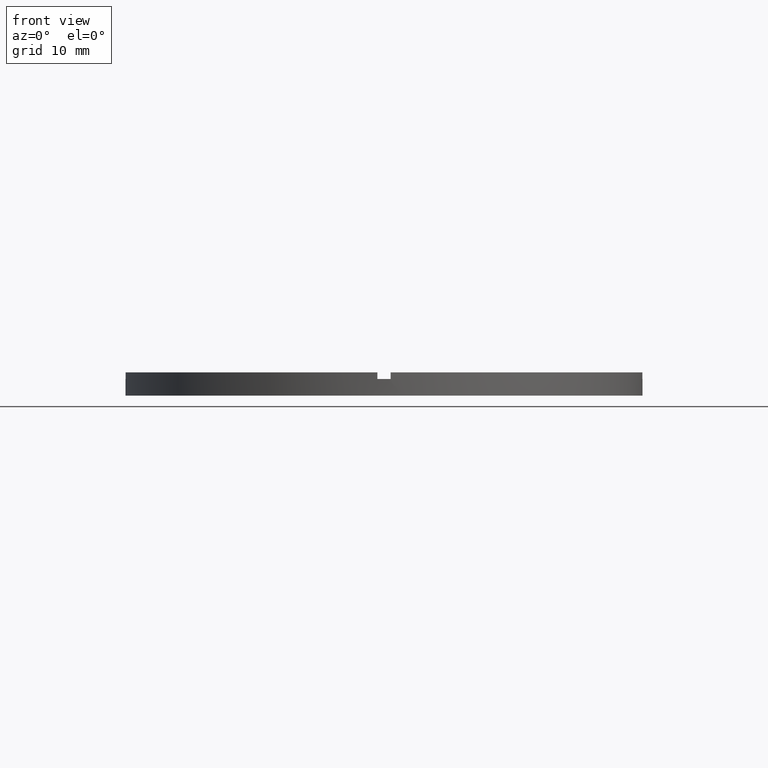
[diagram: clean part render]
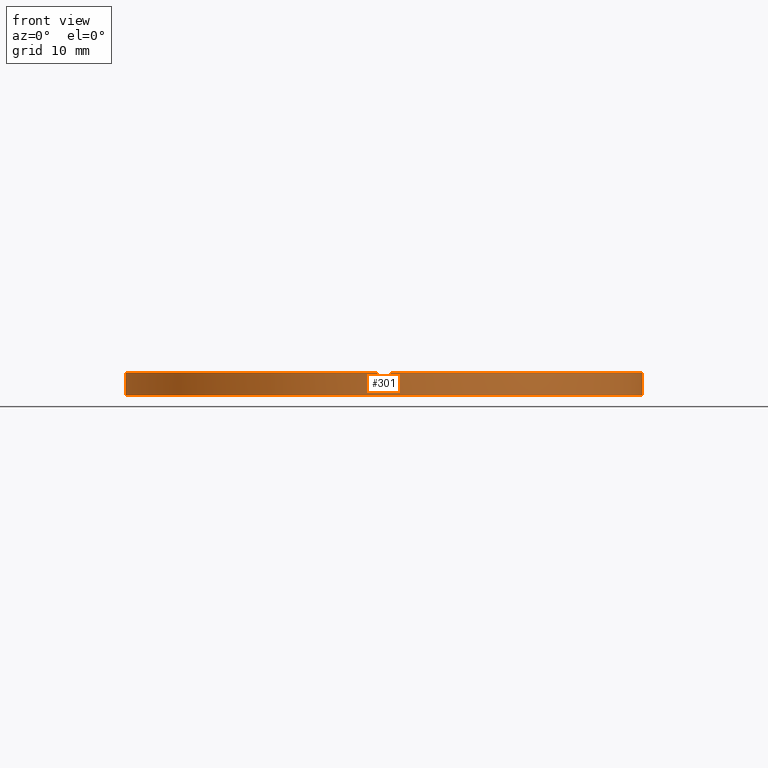
[diagram: same view with one face highlighted and labeled with its STEP entity id]
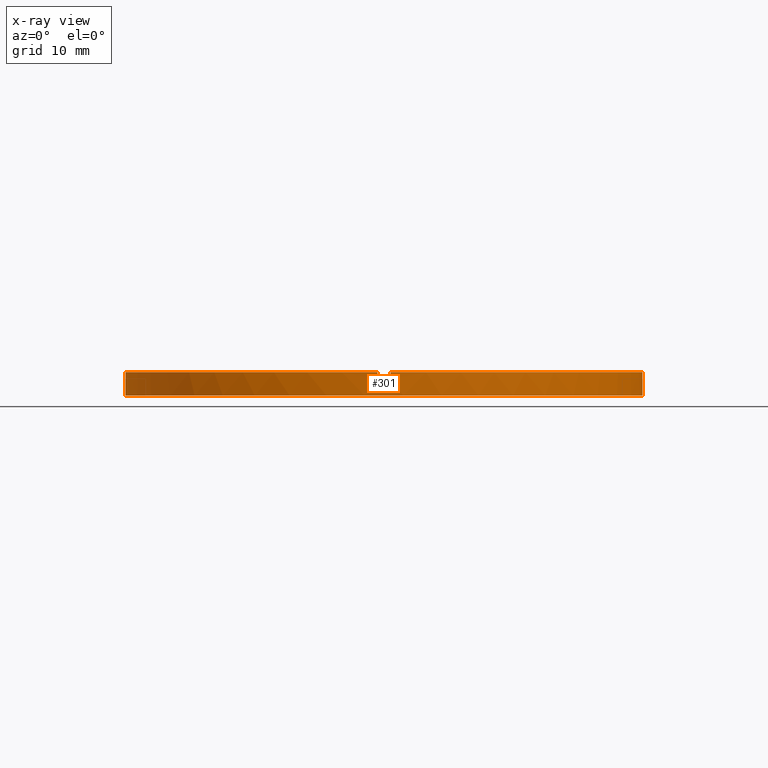
[diagram: x-ray of the same camera — body ghosted, the highlighted face saturated]
A machine part, front view. The second image highlights one B-rep face of the part: STEP entity #301.
The next image is the same camera in x-ray: the body ghosted, the highlighted face saturated — about 0% of this face is hidden behind the body in this view.
In plain terms, the highlighted cylindrical surface (partial cylindrical patch) has radius 39 mm, axis along (-0, -0, -1).
Its self-contained STEP definition (entity closure, byte-faithful):
#8 = CARTESIAN_POINT ( 'NONE',  ( 0.000000000000000000, 0.000000000000000000, 3.500000000000000000 ) ) ;
#11 = EDGE_CURVE ( 'NONE', #224, #164, #133, .T. ) ;
#14 = CARTESIAN_POINT ( 'NONE',  ( 0.9999999999998406830, -38.98717737923585958, 2.500000000000000000 ) ) ;
#44 = AXIS2_PLACEMENT_3D ( 'NONE', #8, #274, #601 ) ;
#47 = CARTESIAN_POINT ( 'NONE',  ( 0.000000000000000000, 0.000000000000000000, 3.500000000000000000 ) ) ;
#54 = EDGE_CURVE ( 'NONE', #696, #496, #155, .T. ) ;
#58 = CARTESIAN_POINT ( 'NONE',  ( -39.00000000000000000, 0.000000000000000000, 3.500000000000000000 ) ) ;
#59 = CARTESIAN_POINT ( 'NONE',  ( 0.000000000000000000, 0.000000000000000000, 2.500000000000000000 ) ) ;
#69 = CARTESIAN_POINT ( 'NONE',  ( -38.98717737923585247, -1.000000000000027978, 2.500000000000000000 ) ) ;
#71 = VECTOR ( 'NONE', #178, 1000.000000000000000 ) ;
#82 = CIRCLE ( 'NONE', #277, 39.00000000000000000 ) ;
#92 = LINE ( 'NONE', #602, #365 ) ;
#105 = CIRCLE ( 'NONE', #641, 39.00000000000000000 ) ;
#133 = LINE ( 'NONE', #640, #157 ) ;
#134 = VECTOR ( 'NONE', #425, 1000.000000000000000 ) ;
#155 = LINE ( 'NONE', #58, #134 ) ;
#157 = VECTOR ( 'NONE', #305, 1000.000000000000000 ) ;
#164 = VERTEX_POINT ( 'NONE', #672 ) ;
#174 = EDGE_CURVE ( 'NONE', #224, #257, #535, .T. ) ;
#178 = DIRECTION ( 'NONE',  ( -0.000000000000000000, -0.000000000000000000, -1.000000000000000000 ) ) ;
#179 = CARTESIAN_POINT ( 'NONE',  ( 39.00000000000000000, 4.776122516674677878E-15, 0.000000000000000000 ) ) ;
#185 = ORIENTED_EDGE ( 'NONE', *, *, #11, .T. ) ;
#198 = ORIENTED_EDGE ( 'NONE', *, *, #427, .F. ) ;
#212 = ORIENTED_EDGE ( 'NONE', *, *, #508, .F. ) ;
#224 = VERTEX_POINT ( 'NONE', #542 ) ;
#226 = VERTEX_POINT ( 'NONE', #423 ) ;
#230 = ORIENTED_EDGE ( 'NONE', *, *, #54, .T. ) ;
#240 = AXIS2_PLACEMENT_3D ( 'NONE', #454, #649, #247 ) ;
#241 = ORIENTED_EDGE ( 'NONE', *, *, #766, .F. ) ;
#247 = DIRECTION ( 'NONE',  ( 1.000000000000000000, 0.000000000000000000, 0.000000000000000000 ) ) ;
#251 = VERTEX_POINT ( 'NONE', #179 ) ;
#257 = VERTEX_POINT ( 'NONE', #307 ) ;
#270 = DIRECTION ( 'NONE',  ( -0.000000000000000000, -0.000000000000000000, -1.000000000000000000 ) ) ;
#274 = DIRECTION ( 'NONE',  ( 0.000000000000000000, 0.000000000000000000, 1.000000000000000000 ) ) ;
#276 = EDGE_CURVE ( 'NONE', #435, #164, #303, .T. ) ;
#277 = AXIS2_PLACEMENT_3D ( 'NONE', #59, #407, #688 ) ;
#293 = CARTESIAN_POINT ( 'NONE',  ( -1.000000000000159428, -38.98717737923584536, 3.500000000000000000 ) ) ;
#299 = CARTESIAN_POINT ( 'NONE',  ( 0.9999999999998406830, -38.98717737923585958, 3.500000000000000000 ) ) ;
#301 = ADVANCED_FACE ( 'NONE', ( #559 ), #546, .T. ) ;
#303 = CIRCLE ( 'NONE', #44, 39.00000000000000000 ) ;
#305 = DIRECTION ( 'NONE',  ( 0.000000000000000000, 0.000000000000000000, 1.000000000000000000 ) ) ;
#307 = CARTESIAN_POINT ( 'NONE',  ( 39.00000000000000000, 4.776122516674677878E-15, 2.500000000000000000 ) ) ;
#321 = DIRECTION ( 'NONE',  ( 1.000000000000000000, 0.000000000000000000, 0.000000000000000000 ) ) ;
#324 = AXIS2_PLACEMENT_3D ( 'NONE', #433, #509, #321 ) ;
#337 = CIRCLE ( 'NONE', #240, 39.00000000000000000 ) ;
#343 = LINE ( 'NONE', #782, #581 ) ;
#364 = LINE ( 'NONE', #571, #618 ) ;
#365 = VECTOR ( 'NONE', #737, 1000.000000000000000 ) ;
#372 = CARTESIAN_POINT ( 'NONE',  ( 39.00000000000000000, 4.776122516674677878E-15, 3.500000000000000000 ) ) ;
#406 = EDGE_CURVE ( 'NONE', #226, #744, #343, .T. ) ;
#407 = DIRECTION ( 'NONE',  ( -0.000000000000000000, 0.000000000000000000, 1.000000000000000000 ) ) ;
#409 = ORIENTED_EDGE ( 'NONE', *, *, #174, .F. ) ;
#416 = ORIENTED_EDGE ( 'NONE', *, *, #724, .T. ) ;
#419 = AXIS2_PLACEMENT_3D ( 'NONE', #47, #773, #719 ) ;
#423 = CARTESIAN_POINT ( 'NONE',  ( -38.98717737923585247, -1.000000000000027978, 3.500000000000000000 ) ) ;
#425 = DIRECTION ( 'NONE',  ( -0.000000000000000000, -0.000000000000000000, -1.000000000000000000 ) ) ;
#426 = DIRECTION ( 'NONE',  ( 1.000000000000000000, 0.000000000000000000, 0.000000000000000000 ) ) ;
#427 = EDGE_CURVE ( 'NONE', #696, #744, #337, .T. ) ;
#431 = CARTESIAN_POINT ( 'NONE',  ( 0.000000000000000000, 0.000000000000000000, 2.500000000000000000 ) ) ;
#433 = CARTESIAN_POINT ( 'NONE',  ( 0.000000000000000000, 0.000000000000000000, 3.500000000000000000 ) ) ;
#435 = VERTEX_POINT ( 'NONE', #299 ) ;
#436 = ORIENTED_EDGE ( 'NONE', *, *, #406, .T. ) ;
#438 = EDGE_CURVE ( 'NONE', #622, #741, #82, .T. ) ;
#454 = CARTESIAN_POINT ( 'NONE',  ( 0.000000000000000000, 0.000000000000000000, 2.500000000000000000 ) ) ;
#469 = ORIENTED_EDGE ( 'NONE', *, *, #276, .F. ) ;
#476 = VERTEX_POINT ( 'NONE', #293 ) ;
#480 = ORIENTED_EDGE ( 'NONE', *, *, #765, .T. ) ;
#496 = VERTEX_POINT ( 'NONE', #587 ) ;
#508 = EDGE_CURVE ( 'NONE', #257, #251, #600, .T. ) ;
#509 = DIRECTION ( 'NONE',  ( 0.000000000000000000, 0.000000000000000000, 1.000000000000000000 ) ) ;
#535 = CIRCLE ( 'NONE', #570, 39.00000000000000000 ) ;
#542 = CARTESIAN_POINT ( 'NONE',  ( 38.98717737923584536, -1.000000000000157208, 2.500000000000000000 ) ) ;
#546 = CYLINDRICAL_SURFACE ( 'NONE', #419, 39.00000000000000000 ) ;
#559 = FACE_OUTER_BOUND ( 'NONE', #755, .T. ) ;
#563 = CARTESIAN_POINT ( 'NONE',  ( 0.000000000000000000, 0.000000000000000000, 0.000000000000000000 ) ) ;
#570 = AXIS2_PLACEMENT_3D ( 'NONE', #431, #621, #747 ) ;
#571 = CARTESIAN_POINT ( 'NONE',  ( 0.9999999999998406830, -38.98717737923585958, 3.500000000000000000 ) ) ;
#581 = VECTOR ( 'NONE', #776, 1000.000000000000000 ) ;
#587 = CARTESIAN_POINT ( 'NONE',  ( -39.00000000000000000, 0.000000000000000000, 0.000000000000000000 ) ) ;
#600 = LINE ( 'NONE', #372, #71 ) ;
#601 = DIRECTION ( 'NONE',  ( 1.000000000000000000, 0.000000000000000000, 0.000000000000000000 ) ) ;
#602 = CARTESIAN_POINT ( 'NONE',  ( -1.000000000000159428, -38.98717737923584536, 3.500000000000000000 ) ) ;
#618 = VECTOR ( 'NONE', #270, 1000.000000000000000 ) ;
#620 = CIRCLE ( 'NONE', #324, 39.00000000000000000 ) ;
#621 = DIRECTION ( 'NONE',  ( 0.000000000000000000, 0.000000000000000000, 1.000000000000000000 ) ) ;
#622 = VERTEX_POINT ( 'NONE', #660 ) ;
#635 = EDGE_CURVE ( 'NONE', #622, #476, #92, .T. ) ;
#640 = CARTESIAN_POINT ( 'NONE',  ( 38.98717737923584536, -1.000000000000157208, 3.500000000000000000 ) ) ;
#641 = AXIS2_PLACEMENT_3D ( 'NONE', #563, #668, #426 ) ;
#649 = DIRECTION ( 'NONE',  ( 0.000000000000000000, 0.000000000000000000, 1.000000000000000000 ) ) ;
#660 = CARTESIAN_POINT ( 'NONE',  ( -1.000000000000159428, -38.98717737923584536, 2.500000000000000000 ) ) ;
#668 = DIRECTION ( 'NONE',  ( 0.000000000000000000, 0.000000000000000000, 1.000000000000000000 ) ) ;
#672 = CARTESIAN_POINT ( 'NONE',  ( 38.98717737923584536, -1.000000000000157208, 3.500000000000000000 ) ) ;
#675 = CARTESIAN_POINT ( 'NONE',  ( -39.00000000000000000, 0.000000000000000000, 2.500000000000000000 ) ) ;
#688 = DIRECTION ( 'NONE',  ( 1.000000000000000000, 0.000000000000000000, 0.000000000000000000 ) ) ;
#696 = VERTEX_POINT ( 'NONE', #675 ) ;
#719 = DIRECTION ( 'NONE',  ( -1.000000000000000000, 0.000000000000000000, 0.000000000000000000 ) ) ;
#724 = EDGE_CURVE ( 'NONE', #496, #251, #105, .T. ) ;
#734 = ORIENTED_EDGE ( 'NONE', *, *, #438, .F. ) ;
#737 = DIRECTION ( 'NONE',  ( 0.000000000000000000, 0.000000000000000000, 1.000000000000000000 ) ) ;
#741 = VERTEX_POINT ( 'NONE', #14 ) ;
#744 = VERTEX_POINT ( 'NONE', #69 ) ;
#747 = DIRECTION ( 'NONE',  ( 1.000000000000000000, 0.000000000000000000, 0.000000000000000000 ) ) ;
#755 = EDGE_LOOP ( 'NONE', ( #212, #409, #185, #469, #480, #734, #762, #241, #436, #198, #230, #416 ) ) ;
#762 = ORIENTED_EDGE ( 'NONE', *, *, #635, .T. ) ;
#765 = EDGE_CURVE ( 'NONE', #435, #741, #364, .T. ) ;
#766 = EDGE_CURVE ( 'NONE', #226, #476, #620, .T. ) ;
#773 = DIRECTION ( 'NONE',  ( -0.000000000000000000, -0.000000000000000000, -1.000000000000000000 ) ) ;
#776 = DIRECTION ( 'NONE',  ( -0.000000000000000000, -0.000000000000000000, -1.000000000000000000 ) ) ;
#782 = CARTESIAN_POINT ( 'NONE',  ( -38.98717737923585247, -1.000000000000027978, 3.500000000000000000 ) ) ;